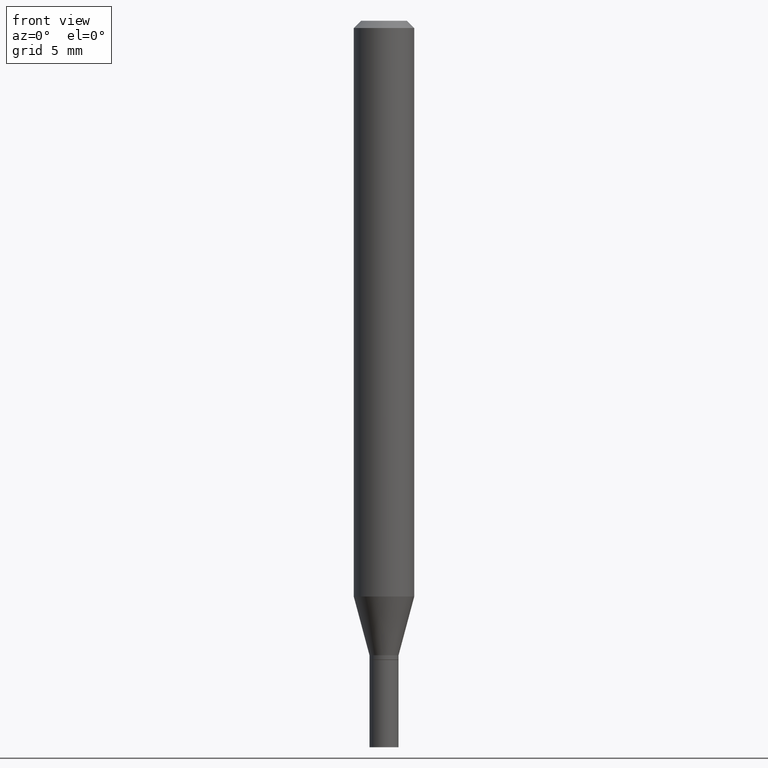
[diagram: clean part render]
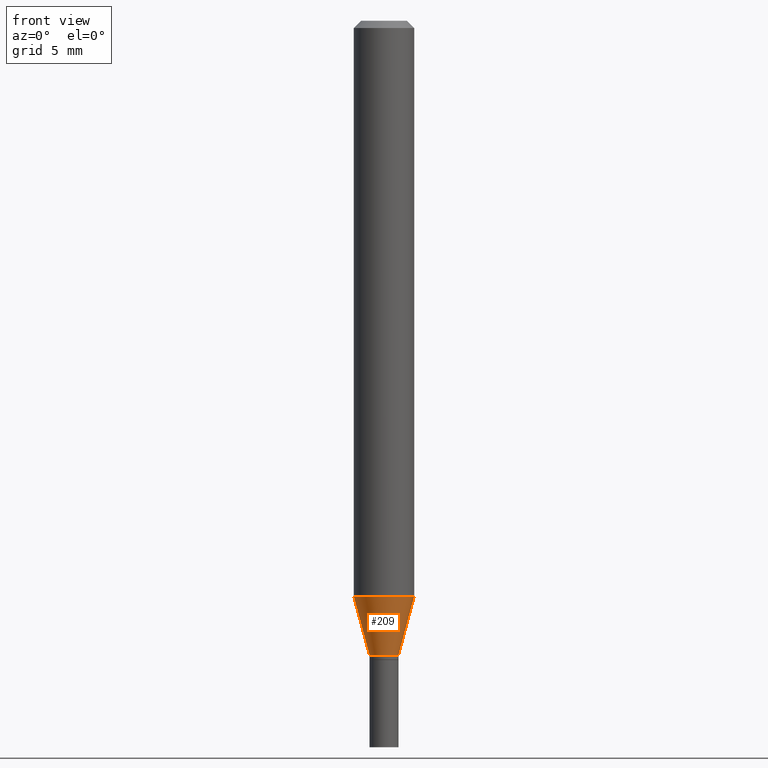
[diagram: same view with one face highlighted and labeled with its STEP entity id]
A machine part, front view. The second image highlights one B-rep face of the part: STEP entity #209.
In plain terms, the highlighted conical surface has half-angle 15 deg.
Its self-contained STEP definition (entity closure, byte-faithful):
#1 = CIRCLE ( 'NONE', #208, 0.03000000000000020012 ) ;
#11 = VERTEX_POINT ( 'NONE', #38 ) ;
#12 = DIRECTION ( 'NONE',  ( 1.000000000000000000, -6.982962677686262766E-15, 0.000000000000000000 ) ) ;
#29 = VERTEX_POINT ( 'NONE', #45 ) ;
#34 = ORIENTED_EDGE ( 'NONE', *, *, #358, .T. ) ;
#38 = CARTESIAN_POINT ( 'NONE',  ( -0.03000000000000020012, -4.033470770154056946E-15, -1.310000000000000275 ) ) ;
#45 = CARTESIAN_POINT ( 'NONE',  ( 0.06250000000000000000, -4.586788184357076846E-15, -1.188708348754012878 ) ) ;
#46 = LINE ( 'NONE', #408, #283 ) ;
#48 = ORIENTED_EDGE ( 'NONE', *, *, #404, .F. ) ;
#52 = VERTEX_POINT ( 'NONE', #375 ) ;
#101 = ORIENTED_EDGE ( 'NONE', *, *, #140, .F. ) ;
#103 = LINE ( 'NONE', #253, #250 ) ;
#138 = DIRECTION ( 'NONE',  ( 0.2588190451025214611, 1.565188264969621573E-15, 0.9659258262890682012 ) ) ;
#140 = EDGE_CURVE ( 'NONE', #52, #29, #170, .T. ) ;
#150 = AXIS2_PLACEMENT_3D ( 'NONE', #203, #371, #457 ) ;
#170 = CIRCLE ( 'NONE', #219, 0.06250000000000000000 ) ;
#177 = CARTESIAN_POINT ( 'NONE',  ( 3.203564136102529457E-29, -4.573840553884521577E-15, -1.310000000000000275 ) ) ;
#183 = DIRECTION ( 'NONE',  ( 1.000000000000000000, -6.982962677686253300E-15, 0.000000000000000000 ) ) ;
#188 = CARTESIAN_POINT ( 'NONE',  ( 0.03000000000000020012, -4.783329434215110683E-15, -1.310000000000000275 ) ) ;
#194 = DIRECTION ( 'NONE',  ( -2.445468806185136597E-29, 3.491481338843145583E-15, 1.000000000000000000 ) ) ;
#203 = CARTESIAN_POINT ( 'NONE',  ( 3.203564136102529457E-29, -4.573840553884521577E-15, -1.310000000000000275 ) ) ;
#208 = AXIS2_PLACEMENT_3D ( 'NONE', #177, #326, #183 ) ;
#209 = ADVANCED_FACE ( 'NONE', ( #227 ), #409, .T. ) ;
#219 = AXIS2_PLACEMENT_3D ( 'NONE', #418, #194, #12 ) ;
#227 = FACE_OUTER_BOUND ( 'NONE', #252, .T. ) ;
#250 = VECTOR ( 'NONE', #138, 39.37007874015747433 ) ;
#252 = EDGE_LOOP ( 'NONE', ( #48, #34, #414, #101 ) ) ;
#253 = CARTESIAN_POINT ( 'NONE',  ( 0.03000000000000020012, -4.783329434215110683E-15, -1.310000000000000275 ) ) ;
#283 = VECTOR ( 'NONE', #441, 39.37007874015747433 ) ;
#292 = EDGE_CURVE ( 'NONE', #398, #29, #103, .T. ) ;
#326 = DIRECTION ( 'NONE',  ( -2.445468806185136597E-29, 3.491481338843145583E-15, 1.000000000000000000 ) ) ;
#358 = EDGE_CURVE ( 'NONE', #11, #398, #1, .T. ) ;
#371 = DIRECTION ( 'NONE',  ( -2.445468806185136597E-29, 3.491481338843145583E-15, 1.000000000000000000 ) ) ;
#375 = CARTESIAN_POINT ( 'NONE',  ( -0.06250000000000000000, -3.706263807151623349E-15, -1.188708348754012878 ) ) ;
#398 = VERTEX_POINT ( 'NONE', #188 ) ;
#404 = EDGE_CURVE ( 'NONE', #11, #52, #46, .T. ) ;
#408 = CARTESIAN_POINT ( 'NONE',  ( -0.03000000000000020012, -4.360677733156489754E-15, -1.310000000000000275 ) ) ;
#409 = CONICAL_SURFACE ( 'NONE', #150, 0.03000000000000020012, 0.2617993877991501295 ) ;
#414 = ORIENTED_EDGE ( 'NONE', *, *, #292, .T. ) ;
#418 = CARTESIAN_POINT ( 'NONE',  ( 2.906949186529780913E-29, -4.150353017001685176E-15, -1.188708348754012878 ) ) ;
#441 = DIRECTION ( 'NONE',  ( -0.2588190451025214611, 5.211531920934551042E-15, 0.9659258262890682012 ) ) ;
#457 = DIRECTION ( 'NONE',  ( 1.000000000000000000, -6.982962677686253300E-15, 0.000000000000000000 ) ) ;